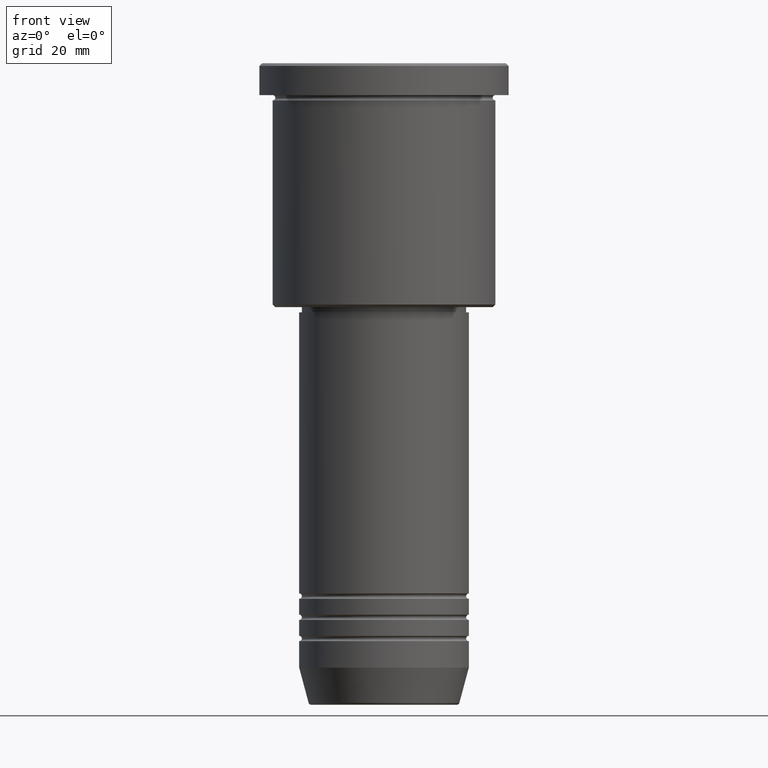
[diagram: clean part render]
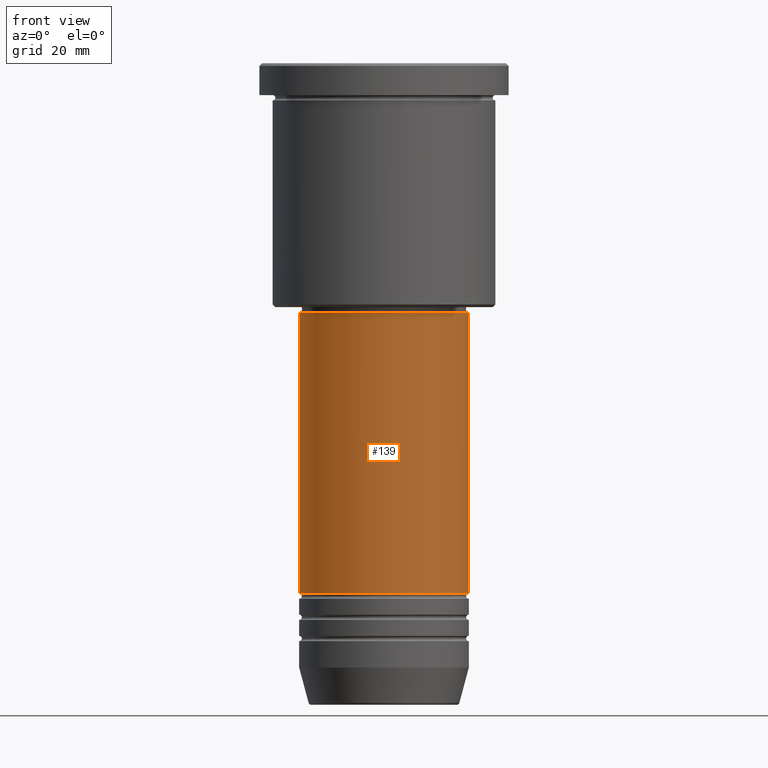
[diagram: same view with one face highlighted and labeled with its STEP entity id]
A machine part, front view. The second image highlights one B-rep face of the part: STEP entity #139.
In plain terms, the highlighted cylindrical surface (partial cylindrical patch) has radius 16 mm, axis along (-0, -0, 1).
Its self-contained STEP definition (entity closure, byte-faithful):
#20 = LINE ( 'NONE', #112, #397 ) ;
#22 = EDGE_CURVE ( 'NONE', #794, #790, #20, .T. ) ;
#60 = EDGE_CURVE ( 'NONE', #195, #790, #778, .T. ) ;
#112 = CARTESIAN_POINT ( 'NONE',  ( 16.00000000000000000, 0.000000000000000000, 0.000000000000000000 ) ) ;
#139 = ADVANCED_FACE ( 'NONE', ( #162 ), #1152, .T. ) ;
#144 = VERTEX_POINT ( 'NONE', #151 ) ;
#151 = CARTESIAN_POINT ( 'NONE',  ( -16.00000000000000000, 1.959434878635765131E-15, -99.99999999999990052 ) ) ;
#162 = FACE_OUTER_BOUND ( 'NONE', #963, .T. ) ;
#169 = ORIENTED_EDGE ( 'NONE', *, *, #22, .T. ) ;
#195 = VERTEX_POINT ( 'NONE', #599 ) ;
#231 = CARTESIAN_POINT ( 'NONE',  ( 0.000000000000000000, 0.000000000000000000, -99.99999999999990052 ) ) ;
#243 = DIRECTION ( 'NONE',  ( 1.000000000000000000, 0.000000000000000000, 0.000000000000000000 ) ) ;
#282 = CIRCLE ( 'NONE', #1183, 16.00000000000000000 ) ;
#397 = VECTOR ( 'NONE', #407, 1000.000000000000000 ) ;
#407 = DIRECTION ( 'NONE',  ( -0.000000000000000000, -0.000000000000000000, 1.000000000000000000 ) ) ;
#450 = EDGE_CURVE ( 'NONE', #144, #195, #582, .T. ) ;
#511 = DIRECTION ( 'NONE',  ( -0.000000000000000000, -0.000000000000000000, 1.000000000000000000 ) ) ;
#582 = LINE ( 'NONE', #587, #1064 ) ;
#587 = CARTESIAN_POINT ( 'NONE',  ( -16.00000000000000000, 1.959434878635765131E-15, 0.000000000000000000 ) ) ;
#599 = CARTESIAN_POINT ( 'NONE',  ( -16.00000000000000355, 1.959434878635765526E-15, -47.00000000000000711 ) ) ;
#612 = ORIENTED_EDGE ( 'NONE', *, *, #60, .F. ) ;
#625 = EDGE_CURVE ( 'NONE', #144, #794, #282, .T. ) ;
#682 = DIRECTION ( 'NONE',  ( 1.000000000000000000, 0.000000000000000000, 0.000000000000000000 ) ) ;
#686 = CARTESIAN_POINT ( 'NONE',  ( 0.000000000000000000, 0.000000000000000000, 0.000000000000000000 ) ) ;
#694 = ORIENTED_EDGE ( 'NONE', *, *, #625, .T. ) ;
#709 = AXIS2_PLACEMENT_3D ( 'NONE', #686, #975, #243 ) ;
#754 = DIRECTION ( 'NONE',  ( -0.000000000000000000, -0.000000000000000000, 1.000000000000000000 ) ) ;
#778 = CIRCLE ( 'NONE', #853, 16.00000000000000355 ) ;
#790 = VERTEX_POINT ( 'NONE', #1161 ) ;
#794 = VERTEX_POINT ( 'NONE', #1166 ) ;
#845 = CARTESIAN_POINT ( 'NONE',  ( 0.000000000000000000, 0.000000000000000000, -47.00000000000000711 ) ) ;
#853 = AXIS2_PLACEMENT_3D ( 'NONE', #845, #1099, #682 ) ;
#870 = DIRECTION ( 'NONE',  ( 1.000000000000000000, 0.000000000000000000, 0.000000000000000000 ) ) ;
#963 = EDGE_LOOP ( 'NONE', ( #965, #694, #169, #612 ) ) ;
#965 = ORIENTED_EDGE ( 'NONE', *, *, #450, .F. ) ;
#975 = DIRECTION ( 'NONE',  ( -0.000000000000000000, -0.000000000000000000, 1.000000000000000000 ) ) ;
#1064 = VECTOR ( 'NONE', #754, 1000.000000000000000 ) ;
#1099 = DIRECTION ( 'NONE',  ( -0.000000000000000000, -0.000000000000000000, 1.000000000000000000 ) ) ;
#1152 = CYLINDRICAL_SURFACE ( 'NONE', #709, 16.00000000000000000 ) ;
#1161 = CARTESIAN_POINT ( 'NONE',  ( 16.00000000000000355, 0.000000000000000000, -47.00000000000000711 ) ) ;
#1166 = CARTESIAN_POINT ( 'NONE',  ( 16.00000000000000000, 0.000000000000000000, -99.99999999999990052 ) ) ;
#1183 = AXIS2_PLACEMENT_3D ( 'NONE', #231, #511, #870 ) ;